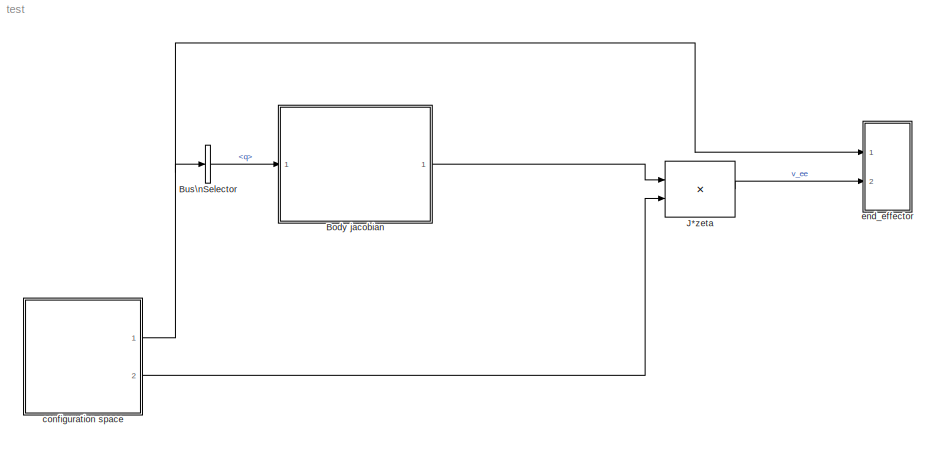
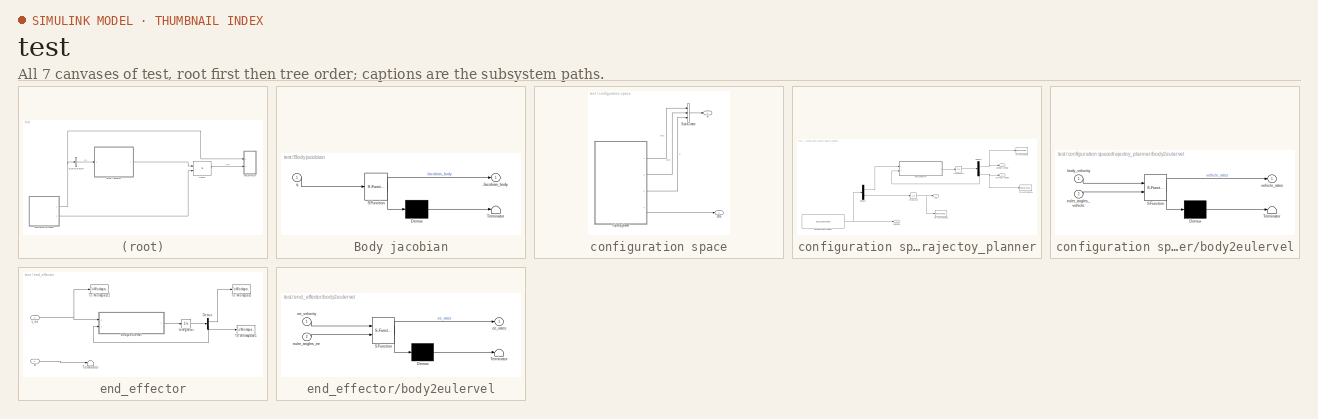
[diagram: thumbnail index - all 7 canvases of the model, root first then tree order]
MODEL test
KIND model
BLOCK [SubSystem] Body jacobian
  ErrorFcn = Stateflow.Translate.translate
  FunctionWithSeparateData = off
  MaskDescription = Embedded MATLAB block
  MaskDisplay = bgColor = Simulink.Root.ColorString2Rgb(get_param(gcbh, 'BackgroundColor')); image(imread('private/eml_membrane_16.png','png','BackgroundColor',bgColor(1:3)),'center'); disp([10 10 'fcn']);  <repeated x3 — deduplicated; at blocks: Body jacobian, body2eulervel>
  MaskHideContents = off
  MaskIconFrame = on
  MaskIconOpaque = off
  MaskIconRotate = none
  MaskIconUnits = normalized
  MaskPortRotate = default
  MaskSelfModifiable = on
  MaskType = Stateflow
  MinAlgLoopOccurrences = off
  Opaque = off
  PermitHierarchicalResolution = ExplicitOnly
  Ports = [1, 1]
  PropExecContextOutsideSubsystem = off
  RTWSystemCode = Auto
  RequestExecContextInheritance = off
  SFBlockType = MATLAB Function
  SID = 4
  TreatAsAtomicUnit = on
BLOCK [Demux] Body jacobian/ Demux 
  Outputs = 1
  Ports = [1, 1]
  SID = 4::20
BLOCK [S-Function] Body jacobian/ SFunction 
  EnableBusSupport = on
  FunctionName = sf_sfun
  PortCounts = [1 2]
  Ports = [1, 2]
  SID = 4::19
  Tag = Stateflow S-Function test 2
BLOCK [Terminator] Body jacobian/ Terminator 
  SID = 4::22
BLOCK [Outport] Body jacobian/Jacobian_body
  IconDisplay = Port number
  SID = 4::5
BLOCK [Inport] Body jacobian/q
  IconDisplay = Port number
  SID = 4::1
BLOCK [BusSelector] Bus\nSelector
  OutputSignals = q
  Ports = [1, 1]
  SID = 71
BLOCK [Product] J*zeta
  InputSameDT = off
  Multiplication = Matrix(*)
  OutDataTypeStr = Inherit: Inherit via internal rule
  Ports = [2, 1]
  SID = 22
  SaturateOnIntegerOverflow = off
BLOCK [SubSystem] configuration space
  FunctionWithSeparateData = off
  MaskHideContents = off
  MinAlgLoopOccurrences = off
  Opaque = off
  Ports = [0, 2]
  PropExecContextOutsideSubsystem = off
  RTWSystemCode = Auto
  RequestExecContextInheritance = off
  SID = 11
BLOCK [BusCreator] configuration space/Bus\nCreator
  DisplayOption = bar
  Inputs = 3
  Ports = [3, 1]
  SID = 68
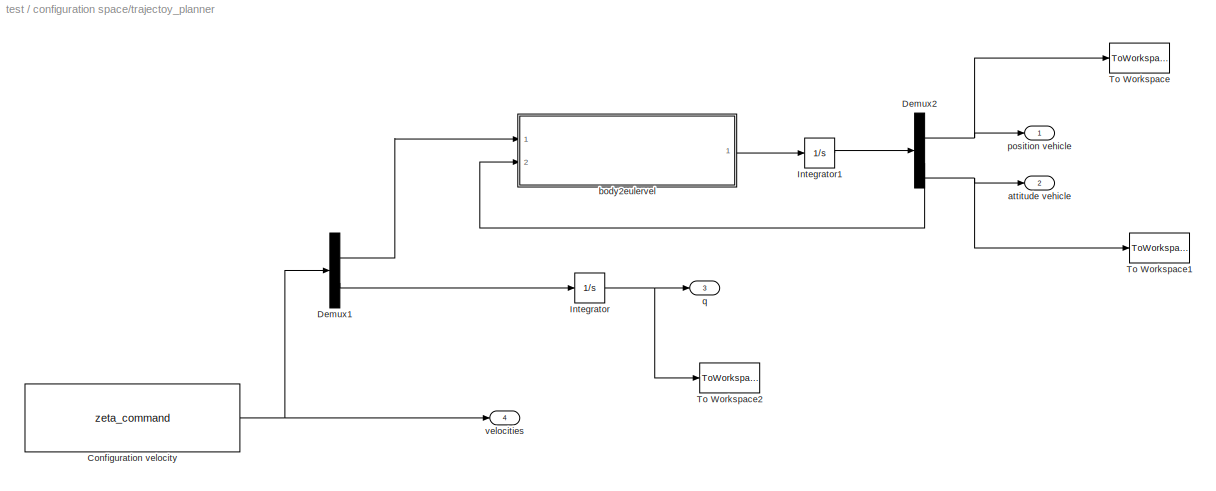
BLOCK [SubSystem] configuration space/trajectoy_planner
  FunctionWithSeparateData = off
  MaskHideContents = off
  MinAlgLoopOccurrences = off
  Opaque = off
  Ports = [0, 4]
  PropExecContextOutsideSubsystem = off
  RTWSystemCode = Auto
  RequestExecContextInheritance = off
  SID = 53
BLOCK [Constant] configuration space/trajectoy_planner/Configuration velocity 
  SID = 19
  Value = zeta_command
BLOCK [Demux] configuration space/trajectoy_planner/Demux1
  DisplayOption = bar
  Outputs = 2
  Ports = [1, 2]
  SID = 47
BLOCK [Demux] configuration space/trajectoy_planner/Demux2
  DisplayOption = bar
  Outputs = 2
  Ports = [1, 2]
  SID = 59
BLOCK [Integrator] configuration space/trajectoy_planner/Integrator
  Ports = [1, 1]
  SID = 50
BLOCK [Integrator] configuration space/trajectoy_planner/Integrator1
  Ports = [1, 1]
  SID = 60
BLOCK [ToWorkspace] configuration space/trajectoy_planner/To Workspace
  MaxDataPoints = inf
  Ports = [1]
  SID = 82
  SampleTime = -1
  SaveFormat = Structure With Time
  VariableName = eta1_s
BLOCK [ToWorkspace] configuration space/trajectoy_planner/To Workspace1
  MaxDataPoints = inf
  Ports = [1]
  SID = 83
  SampleTime = -1
  SaveFormat = Structure With Time
  VariableName = eta2_s
BLOCK [ToWorkspace] configuration space/trajectoy_planner/To Workspace2
  MaxDataPoints = inf
  Ports = [1]
  SID = 84
  SampleTime = -1
  SaveFormat = Structure With Time
  VariableName = q_s
BLOCK [Outport] configuration space/trajectoy_planner/attitude vehicle
  IconDisplay = Port number
  Port = 2
  SID = 61
BLOCK [SubSystem] configuration space/trajectoy_planner/body2eulervel
  ErrorFcn = Stateflow.Translate.translate
  FunctionWithSeparateData = off
  MaskDescription = Embedded MATLAB block
  MaskHideContents = off
  MaskIconFrame = on
  MaskIconOpaque = off
  MaskIconRotate = none
  MaskIconUnits = normalized
  MaskPortRotate = default
  MaskSelfModifiable = on
  MaskType = Stateflow
  MinAlgLoopOccurrences = off
  Opaque = off
  PermitHierarchicalResolution = ExplicitOnly
  Ports = [2, 1]
  PropExecContextOutsideSubsystem = off
  RTWSystemCode = Auto
  RequestExecContextInheritance = off
  SFBlockType = MATLAB Function
  SID = 52
  TreatAsAtomicUnit = on
BLOCK [Demux] configuration space/trajectoy_planner/body2eulervel/ Demux 
  Outputs = 1
  Ports = [1, 1]
  SID = 52::20
BLOCK [S-Function] configuration space/trajectoy_planner/body2eulervel/ SFunction 
  EnableBusSupport = on
  FunctionName = sf_sfun
  PortCounts = [2 2]
  Ports = [2, 2]
  SID = 52::19
  Tag = Stateflow S-Function test 3
BLOCK [Terminator] configuration space/trajectoy_planner/body2eulervel/ Terminator 
  SID = 52::22
BLOCK [Inport] configuration space/trajectoy_planner/body2eulervel/body_velocity
  IconDisplay = Port number
  SID = 52::1
BLOCK [Inport] configuration space/trajectoy_planner/body2eulervel/euler_angles_vehicle
  IconDisplay = Port number
  Port = 2
  SID = 52::23
BLOCK [Outport] configuration space/trajectoy_planner/body2eulervel/vehicle_rates
  IconDisplay = Port number
  SID = 52::5
BLOCK [Outport] configuration space/trajectoy_planner/position vehicle
  IconDisplay = Port number
  SID = 54
BLOCK [Outport] configuration space/trajectoy_planner/q
  IconDisplay = Port number
  Port = 3
  SID = 58
BLOCK [Outport] configuration space/trajectoy_planner/velocities
  IconDisplay = Port number
  Port = 4
  SID = 57
BLOCK [Outport] configuration space/xi
  IconDisplay = Port number
  SID = 69
BLOCK [Outport] configuration space/zeta
  IconDisplay = Port number
  Port = 2
  SID = 13
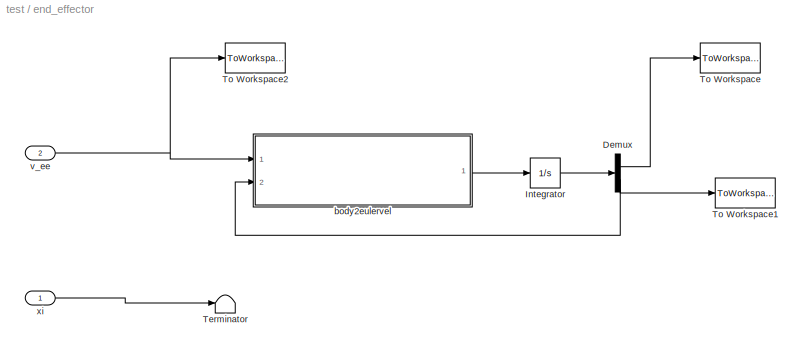
BLOCK [SubSystem] end_effector
  FunctionWithSeparateData = off
  MaskHideContents = off
  MinAlgLoopOccurrences = off
  Opaque = off
  Ports = [2]
  PropExecContextOutsideSubsystem = off
  RTWSystemCode = Auto
  RequestExecContextInheritance = off
  SID = 63
BLOCK [Demux] end_effector/Demux
  DisplayOption = bar
  Outputs = 2
  Ports = [1, 2]
  SID = 77
BLOCK [Integrator] end_effector/Integrator
  InitialCondition = initial_ee_pose
  Ports = [1, 1]
  SID = 76
BLOCK [Terminator] end_effector/Terminator
  SID = 81
BLOCK [ToWorkspace] end_effector/To Workspace
  MaxDataPoints = inf
  Ports = [1]
  SID = 78
  SampleTime = -1
  SaveFormat = Structure With Time
  VariableName = ee_pos_s
BLOCK [ToWorkspace] end_effector/To Workspace1
  MaxDataPoints = inf
  Ports = [1]
  SID = 79
  SampleTime = -1
  SaveFormat = Structure With Time
  VariableName = ee_euler_s
BLOCK [ToWorkspace] end_effector/To Workspace2
  MaxDataPoints = inf
  Ports = [1]
  SID = 101
  SampleTime = -1
  SaveFormat = Structure With Time
  VariableName = ee_vel_s
BLOCK [SubSystem] end_effector/body2eulervel
  ErrorFcn = Stateflow.Translate.translate
  FunctionWithSeparateData = off
  MaskDescription = Embedded MATLAB block
  MaskHideContents = off
  MaskIconFrame = on
  MaskIconOpaque = off
  MaskIconRotate = none
  MaskIconUnits = normalized
  MaskPortRotate = default
  MaskSelfModifiable = on
  MaskType = Stateflow
  MinAlgLoopOccurrences = off
  Opaque = off
  PermitHierarchicalResolution = ExplicitOnly
  Ports = [2, 1]
  PropExecContextOutsideSubsystem = off
  RTWSystemCode = Auto
  RequestExecContextInheritance = off
  SFBlockType = MATLAB Function
  SID = 73
  TreatAsAtomicUnit = on
BLOCK [Demux] end_effector/body2eulervel/ Demux 
  Outputs = 1
  Ports = [1, 1]
  SID = 73::20
BLOCK [S-Function] end_effector/body2eulervel/ SFunction 
  EnableBusSupport = on
  FunctionName = sf_sfun
  PortCounts = [2 2]
  Ports = [2, 2]
  SID = 73::19
  Tag = Stateflow S-Function test 1
BLOCK [Terminator] end_effector/body2eulervel/ Terminator 
  SID = 73::22
BLOCK [Outport] end_effector/body2eulervel/ee_rates
  IconDisplay = Port number
  SID = 73::5
BLOCK [Inport] end_effector/body2eulervel/ee_velocity
  IconDisplay = Port number
  SID = 73::1
BLOCK [Inport] end_effector/body2eulervel/euler_angles_ee
  IconDisplay = Port number
  Port = 2
  SID = 73::23
BLOCK [Inport] end_effector/v_ee
  IconDisplay = Port number
  Port = 2
  SID = 65
BLOCK [Inport] end_effector/xi
  IconDisplay = Port number
  SID = 64
LINE Body jacobian/ Demux :1 -> Body jacobian/ Terminator :1
LINE Body jacobian/ SFunction :1 -> Body jacobian/ Demux :1
LINE Body jacobian/ SFunction :2 -> Body jacobian/Jacobian_body:1
LINE Body jacobian/q:1 -> Body jacobian/ SFunction :1
LINE Body jacobian:1 -> J*zeta:1
LINE Bus\nSelector:1 -> Body jacobian:1
LINE J*zeta:1 -> end_effector:2
LINE configuration space/Bus\nCreator:1 -> configuration space/xi:1
NET configuration space/trajectoy_planner/Configuration velocity :1 -> configuration space/trajectoy_planner/Demux1:1, configuration space/trajectoy_planner/velocities:1
LINE configuration space/trajectoy_planner/Demux1:1 -> configuration space/trajectoy_planner/body2eulervel:1
LINE configuration space/trajectoy_planner/Demux1:2 -> configuration space/trajectoy_planner/Integrator:1
NET configuration space/trajectoy_planner/Demux2:1 -> configuration space/trajectoy_planner/To Workspace:1, configuration space/trajectoy_planner/position vehicle:1
NET configuration space/trajectoy_planner/Demux2:2 -> configuration space/trajectoy_planner/To Workspace1:1, configuration space/trajectoy_planner/attitude vehicle:1, configuration space/trajectoy_planner/body2eulervel:2
LINE configuration space/trajectoy_planner/Integrator1:1 -> configuration space/trajectoy_planner/Demux2:1
NET configuration space/trajectoy_planner/Integrator:1 -> configuration space/trajectoy_planner/To Workspace2:1, configuration space/trajectoy_planner/q:1
LINE configuration space/trajectoy_planner/body2eulervel/ Demux :1 -> configuration space/trajectoy_planner/body2eulervel/ Terminator :1
LINE configuration space/trajectoy_planner/body2eulervel/ SFunction :1 -> configuration space/trajectoy_planner/body2eulervel/ Demux :1
LINE configuration space/trajectoy_planner/body2eulervel/ SFunction :2 -> configuration space/trajectoy_planner/body2eulervel/vehicle_rates:1
LINE configuration space/trajectoy_planner/body2eulervel/body_velocity:1 -> configuration space/trajectoy_planner/body2eulervel/ SFunction :1
LINE configuration space/trajectoy_planner/body2eulervel/euler_angles_vehicle:1 -> configuration space/trajectoy_planner/body2eulervel/ SFunction :2
LINE configuration space/trajectoy_planner/body2eulervel:1 -> configuration space/trajectoy_planner/Integrator1:1
LINE configuration space/trajectoy_planner:1 -> configuration space/Bus\nCreator:1
LINE configuration space/trajectoy_planner:2 -> configuration space/Bus\nCreator:2
LINE configuration space/trajectoy_planner:3 -> configuration space/Bus\nCreator:3
LINE configuration space/trajectoy_planner:4 -> configuration space/zeta:1
NET configuration space:1 -> Bus\nSelector:1, end_effector:1
LINE configuration space:2 -> J*zeta:2
LINE end_effector/Demux:1 -> end_effector/To Workspace:1
NET end_effector/Demux:2 -> end_effector/To Workspace1:1, end_effector/body2eulervel:2
LINE end_effector/Integrator:1 -> end_effector/Demux:1
LINE end_effector/body2eulervel/ Demux :1 -> end_effector/body2eulervel/ Terminator :1
LINE end_effector/body2eulervel/ SFunction :1 -> end_effector/body2eulervel/ Demux :1
LINE end_effector/body2eulervel/ SFunction :2 -> end_effector/body2eulervel/ee_rates:1
LINE end_effector/body2eulervel/ee_velocity:1 -> end_effector/body2eulervel/ SFunction :1
LINE end_effector/body2eulervel/euler_angles_ee:1 -> end_effector/body2eulervel/ SFunction :2
LINE end_effector/body2eulervel:1 -> end_effector/Integrator:1
NET end_effector/v_ee:1 -> end_effector/To Workspace2:1, end_effector/body2eulervel:1
LINE end_effector/xi:1 -> end_effector/Terminator:1
note: NET lines group one-source signal fan-out (src -> all destinations, sorted); 1:1 wires keep LINE
CHART end_effector/body2eulervel states=1 transitions=1
  STATE_LABEL 'eML_blk_kernel()'
CHART Body jacobian states=1 transitions=1
  STATE_LABEL 'eML_blk_kernel()'
CHART configuration space/trajectoy_planner/body2eulervel states=1 transitions=1
  STATE_LABEL 'eML_blk_kernel()'
